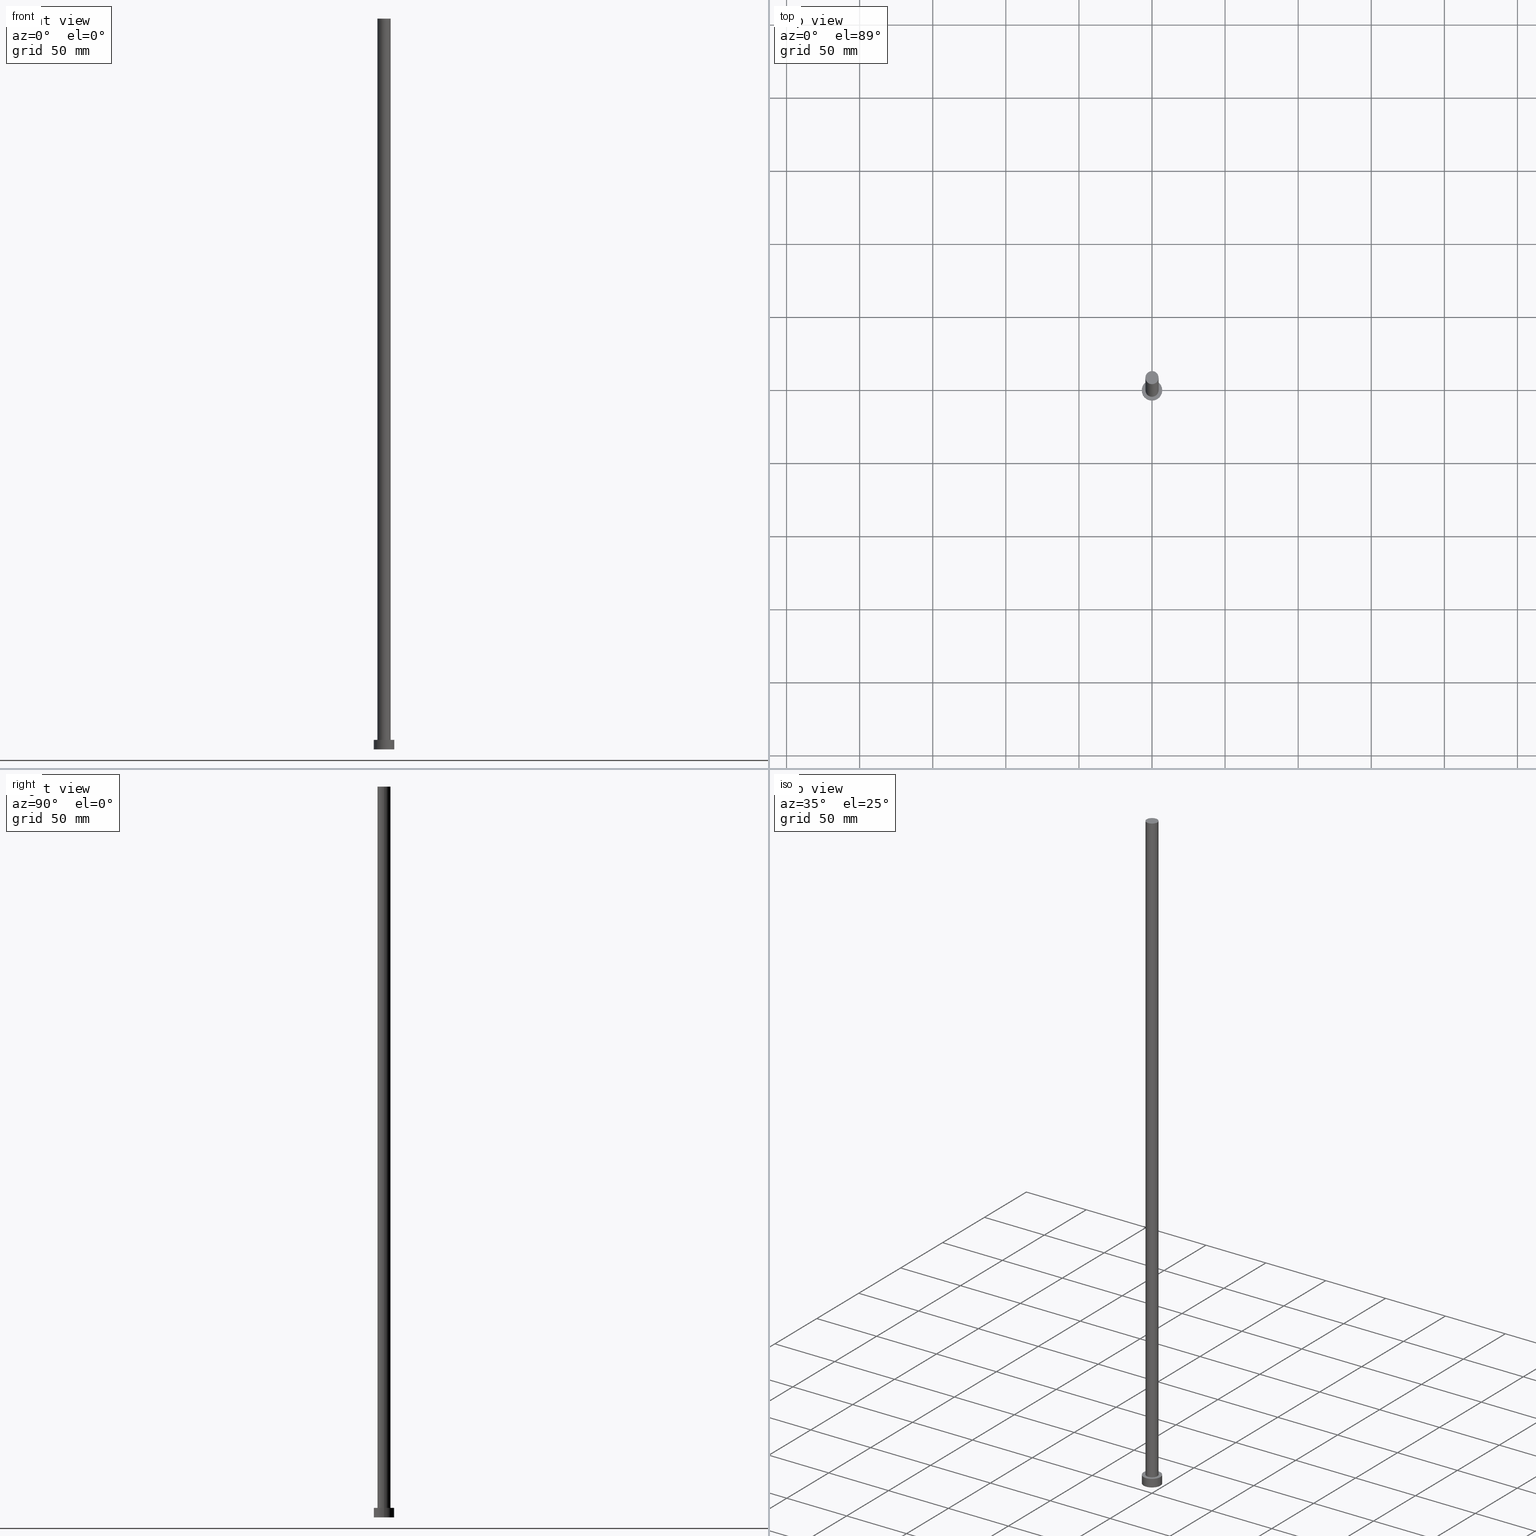
[diagram: canonical four-view strip — front | top / right | iso, engineering-drawing reading convention]
A machine part, canonical four-view strip (front | top / right | iso — engineering-drawing reading convention). The complete STEP part file that produces these views, byte-faithful:
ISO-10303-21;
HEADER;
FILE_DESCRIPTION (( 'STEP AP203' ),
    '1' );
FILE_NAME ('0ea1.STEP',
    '2023-02-13T13:45:12',
    ( '' ),
    ( '' ),
    'SwSTEP 2.0',
    'SolidWorks 2019',
    '' );
FILE_SCHEMA (( 'CONFIG_CONTROL_DESIGN' ));
ENDSEC;

DATA;
#1 =( NAMED_UNIT ( * ) SI_UNIT ( $, .STERADIAN. ) SOLID_ANGLE_UNIT ( ) );
#2 = LOCAL_TIME ( 14, 45, 12.00000000000000000, #143 ) ;
#3 = CARTESIAN_POINT ( 'NONE',  ( 4.500000000000000888, 5.510910596163089556E-16, 500.0000000000000000 ) ) ;
#4 = CALENDAR_DATE ( 2023, 13, 2 ) ;
#5 = DIRECTION ( 'NONE',  ( 0.000000000000000000, 0.000000000000000000, 1.000000000000000000 ) ) ;
#6 = ORIENTED_EDGE ( 'NONE', *, *, #245, .T. ) ;
#7 = CC_DESIGN_APPROVAL ( #193, ( #105 ) ) ;
#8 = EDGE_LOOP ( 'NONE', ( #40, #24 ) ) ;
#9 = CC_DESIGN_PERSON_AND_ORGANIZATION_ASSIGNMENT ( #95, #174, ( #150 ) ) ;
#10 = CC_DESIGN_DATE_AND_TIME_ASSIGNMENT ( #137, #111, ( #102 ) ) ;
#11 = CARTESIAN_POINT ( 'NONE',  ( -7.000000000000000000, 0.000000000000000000, 6.500000000000000000 ) ) ;
#12 = FACE_OUTER_BOUND ( 'NONE', #8, .T. ) ;
#13 = CC_DESIGN_SECURITY_CLASSIFICATION ( #102, ( #150 ) ) ;
#14 = DIRECTION ( 'NONE',  ( 1.000000000000000000, 0.000000000000000000, 0.000000000000000000 ) ) ;
#15 = DIRECTION ( 'NONE',  ( -0.000000000000000000, -0.000000000000000000, -1.000000000000000000 ) ) ;
#16 = DIRECTION ( 'NONE',  ( -0.000000000000000000, -0.000000000000000000, -1.000000000000000000 ) ) ;
#17 = DIRECTION ( 'NONE',  ( 0.000000000000000000, 0.000000000000000000, 1.000000000000000000 ) ) ;
#18 = MANIFOLD_SOLID_BREP ( 'P�idat vysunut�m3', #99 ) ;
#19 = VECTOR ( 'NONE', #110, 1000.000000000000000 ) ;
#20 = DIRECTION ( 'NONE',  ( 1.000000000000000000, 0.000000000000000000, 0.000000000000000000 ) ) ;
#21 = APPROVAL ( #172, 'NEUR�EN�' ) ;
#22 = APPROVAL_ROLE ( '' ) ;
#23 = PLANE ( 'NONE',  #116 ) ;
#24 = ORIENTED_EDGE ( 'NONE', *, *, #129, .F. ) ;
#25 = CIRCLE ( 'NONE', #31, 7.000000000000000000 ) ;
#26 = ORIENTED_EDGE ( 'NONE', *, *, #170, .T. ) ;
#27 = EDGE_CURVE ( 'NONE', #126, #146, #75, .T. ) ;
#28 = CARTESIAN_POINT ( 'NONE',  ( 0.000000000000000000, 0.000000000000000000, 500.0000000000000000 ) ) ;
#29 = CARTESIAN_POINT ( 'NONE',  ( 0.000000000000000000, 0.000000000000000000, 500.0000000000000000 ) ) ;
#30 = AXIS2_PLACEMENT_3D ( 'NONE', #68, #151, #113 ) ;
#31 = AXIS2_PLACEMENT_3D ( 'NONE', #90, #205, #109 ) ;
#32 = AXIS2_PLACEMENT_3D ( 'NONE', #71, #51, #139 ) ;
#33 = CARTESIAN_POINT ( 'NONE',  ( 0.000000000000000000, 0.000000000000000000, 6.500000000000000000 ) ) ;
#34 = CYLINDRICAL_SURFACE ( 'NONE', #30, 7.000000000000000000 ) ;
#35 = CARTESIAN_POINT ( 'NONE',  ( 0.000000000000000000, 0.000000000000000000, 500.0000000000000000 ) ) ;
#36 = PERSON_AND_ORGANIZATION ( #231, #173 ) ;
#37 = AXIS2_PLACEMENT_3D ( 'NONE', #33, #209, #252 ) ;
#38 = APPROVAL_PERSON_ORGANIZATION ( #122, #21, #96 ) ;
#39 = EDGE_LOOP ( 'NONE', ( #197, #42, #101, #194 ) ) ;
#40 = ORIENTED_EDGE ( 'NONE', *, *, #198, .F. ) ;
#41 = PERSON_AND_ORGANIZATION ( #231, #173 ) ;
#42 = ORIENTED_EDGE ( 'NONE', *, *, #249, .F. ) ;
#43 = ADVANCED_FACE ( 'NONE', ( #155, #123 ), #23, .T. ) ;
#44 = CARTESIAN_POINT ( 'NONE',  ( -7.000000000000000000, 0.000000000000000000, 6.500000000000000000 ) ) ;
#45 = CARTESIAN_POINT ( 'NONE',  ( -4.500000000000000888, 0.000000000000000000, 500.0000000000000000 ) ) ;
#46 = CIRCLE ( 'NONE', #118, 4.500000000000000888 ) ;
#47 = PLANE ( 'NONE',  #85 ) ;
#48 = LINE ( 'NONE', #189, #211 ) ;
#49 = DIRECTION ( 'NONE',  ( 0.000000000000000000, 0.000000000000000000, 1.000000000000000000 ) ) ;
#50 = CALENDAR_DATE ( 2023, 13, 2 ) ;
#51 = DIRECTION ( 'NONE',  ( -0.000000000000000000, -0.000000000000000000, -1.000000000000000000 ) ) ;
#52 = DIRECTION ( 'NONE',  ( -1.000000000000000000, 0.000000000000000000, 0.000000000000000000 ) ) ;
#53 = ORIENTED_EDGE ( 'NONE', *, *, #245, .F. ) ;
#54 = CYLINDRICAL_SURFACE ( 'NONE', #32, 7.000000000000000000 ) ;
#55 = DATE_AND_TIME ( #236, #2 ) ;
#56 = PERSON_AND_ORGANIZATION ( #231, #173 ) ;
#57 = AXIS2_PLACEMENT_3D ( 'NONE', #168, #167, #52 ) ;
#58 = EDGE_LOOP ( 'NONE', ( #203, #242 ) ) ;
#59 = COORDINATED_UNIVERSAL_TIME_OFFSET ( 1, 0, .AHEAD. ) ;
#60 = DESIGN_CONTEXT ( 'detailed design', #183, 'design' ) ;
#61 = ORIENTED_EDGE ( 'NONE', *, *, #91, .T. ) ;
#62 =( LENGTH_UNIT ( ) NAMED_UNIT ( * ) SI_UNIT ( .MILLI., .METRE. ) );
#63 = CIRCLE ( 'NONE', #221, 7.000000000000000000 ) ;
#64 = CARTESIAN_POINT ( 'NONE',  ( 7.000000000000000000, 8.572527594031471218E-16, 6.500000000000000000 ) ) ;
#65 = ADVANCED_FACE ( 'NONE', ( #135 ), #47, .T. ) ;
#66 = CARTESIAN_POINT ( 'NONE',  ( -4.500000000000000888, 0.000000000000000000, 6.500000000000000000 ) ) ;
#67 = CYLINDRICAL_SURFACE ( 'NONE', #57, 4.500000000000000888 ) ;
#68 = CARTESIAN_POINT ( 'NONE',  ( 0.000000000000000000, 0.000000000000000000, 6.500000000000000000 ) ) ;
#69 = CARTESIAN_POINT ( 'NONE',  ( 0.000000000000000000, 0.000000000000000000, 6.500000000000000000 ) ) ;
#70 = DIRECTION ( 'NONE',  ( 1.000000000000000000, 0.000000000000000000, 0.000000000000000000 ) ) ;
#71 = CARTESIAN_POINT ( 'NONE',  ( 0.000000000000000000, 0.000000000000000000, 6.500000000000000000 ) ) ;
#72 = PERSON_AND_ORGANIZATION ( #231, #173 ) ;
#73 = ORIENTED_EDGE ( 'NONE', *, *, #129, .T. ) ;
#74 = ADVANCED_FACE ( 'NONE', ( #207 ), #34, .T. ) ;
#75 = LINE ( 'NONE', #44, #222 ) ;
#76 = AXIS2_PLACEMENT_3D ( 'NONE', #145, #5, #220 ) ;
#77 = VERTEX_POINT ( 'NONE', #89 ) ;
#78 = CC_DESIGN_PERSON_AND_ORGANIZATION_ASSIGNMENT ( #56, #246, ( #158 ) ) ;
#79 = CARTESIAN_POINT ( 'NONE',  ( 0.000000000000000000, 0.000000000000000000, 6.500000000000000000 ) ) ;
#80 = CIRCLE ( 'NONE', #37, 4.500000000000000888 ) ;
#81 = CC_DESIGN_PERSON_AND_ORGANIZATION_ASSIGNMENT ( #41, #213, ( #105 ) ) ;
#82 = DIRECTION ( 'NONE',  ( 0.000000000000000000, 0.000000000000000000, 1.000000000000000000 ) ) ;
#83 = ADVANCED_FACE ( 'NONE', ( #138 ), #67, .T. ) ;
#84 =( NAMED_UNIT ( * ) PLANE_ANGLE_UNIT ( ) SI_UNIT ( $, .RADIAN. ) );
#85 = AXIS2_PLACEMENT_3D ( 'NONE', #28, #133, #115 ) ;
#86 = APPLICATION_CONTEXT ( 'configuration controlled 3d designs of mechanical parts and assemblies' ) ;
#87 = AXIS2_PLACEMENT_3D ( 'NONE', #254, #88, #112 ) ;
#88 = DIRECTION ( 'NONE',  ( 0.000000000000000000, 0.000000000000000000, 1.000000000000000000 ) ) ;
#89 = CARTESIAN_POINT ( 'NONE',  ( 7.000000000000000000, 8.572527594031471218E-16, 6.500000000000000000 ) ) ;
#90 = CARTESIAN_POINT ( 'NONE',  ( 0.000000000000000000, 0.000000000000000000, 0.000000000000000000 ) ) ;
#91 = EDGE_CURVE ( 'NONE', #98, #157, #182, .T. ) ;
#92 = LOCAL_TIME ( 14, 45, 12.00000000000000000, #119 ) ;
#93 = PERSON_AND_ORGANIZATION ( #231, #173 ) ;
#94 = SECURITY_CLASSIFICATION_LEVEL ( 'unclassified' ) ;
#95 = PERSON_AND_ORGANIZATION ( #231, #173 ) ;
#96 = APPROVAL_ROLE ( '' ) ;
#97 = DATE_AND_TIME ( #196, #250 ) ;
#98 = VERTEX_POINT ( 'NONE', #3 ) ;
#99 = CLOSED_SHELL ( 'NONE', ( #83, #74, #100, #43, #202, #255, #65 ) ) ;
#100 = ADVANCED_FACE ( 'NONE', ( #154 ), #54, .T. ) ;
#101 = ORIENTED_EDGE ( 'NONE', *, *, #27, .T. ) ;
#102 = SECURITY_CLASSIFICATION ( '', '', #94 ) ;
#103 = ORIENTED_EDGE ( 'NONE', *, *, #170, .F. ) ;
#104 = EDGE_LOOP ( 'NONE', ( #181, #219, #73, #144 ) ) ;
#105 = PRODUCT_DEFINITION ( 'NEZN�M�', '', #150, #60 ) ;
#106 = EDGE_CURVE ( 'NONE', #77, #148, #130, .T. ) ;
#107 = CC_DESIGN_APPROVAL ( #244, ( #150 ) ) ;
#108 = DIRECTION ( 'NONE',  ( -1.000000000000000000, 0.000000000000000000, 0.000000000000000000 ) ) ;
#109 = DIRECTION ( 'NONE',  ( 1.000000000000000000, 0.000000000000000000, 0.000000000000000000 ) ) ;
#110 = DIRECTION ( 'NONE',  ( -0.000000000000000000, -0.000000000000000000, -1.000000000000000000 ) ) ;
#111 = DATE_TIME_ROLE ( 'classification_date' ) ;
#112 = DIRECTION ( 'NONE',  ( 1.000000000000000000, 0.000000000000000000, -0.000000000000000000 ) ) ;
#113 = DIRECTION ( 'NONE',  ( -1.000000000000000000, 0.000000000000000000, 0.000000000000000000 ) ) ;
#114 = DIRECTION ( 'NONE',  ( 0.000000000000000000, 0.000000000000000000, 1.000000000000000000 ) ) ;
#115 = DIRECTION ( 'NONE',  ( 1.000000000000000000, 0.000000000000000000, -0.000000000000000000 ) ) ;
#116 = AXIS2_PLACEMENT_3D ( 'NONE', #79, #82, #159 ) ;
#117 = AXIS2_PLACEMENT_3D ( 'NONE', #29, #247, #108 ) ;
#118 = AXIS2_PLACEMENT_3D ( 'NONE', #35, #114, #225 ) ;
#119 = COORDINATED_UNIVERSAL_TIME_OFFSET ( 1, 0, .AHEAD. ) ;
#120 = EDGE_LOOP ( 'NONE', ( #53, #103, #149, #179 ) ) ;
#121 = PERSON_AND_ORGANIZATION ( #231, #173 ) ;
#122 = PERSON_AND_ORGANIZATION ( #231, #173 ) ;
#123 = FACE_OUTER_BOUND ( 'NONE', #243, .T. ) ;
#124 = ORIENTED_EDGE ( 'NONE', *, *, #91, .F. ) ;
#125 = CALENDAR_DATE ( 2023, 13, 2 ) ;
#126 = VERTEX_POINT ( 'NONE', #11 ) ;
#127 = DIRECTION ( 'NONE',  ( -0.000000000000000000, -0.000000000000000000, -1.000000000000000000 ) ) ;
#128 = PRODUCT_RELATED_PRODUCT_CATEGORY ( 'detail', '', ( #158 ) ) ;
#129 = EDGE_CURVE ( 'NONE', #148, #146, #165, .T. ) ;
#130 = LINE ( 'NONE', #64, #19 ) ;
#131 = DIRECTION ( 'NONE',  ( 0.000000000000000000, 0.000000000000000000, 1.000000000000000000 ) ) ;
#132 = AXIS2_PLACEMENT_3D ( 'NONE', #232, #142, #20 ) ;
#133 = DIRECTION ( 'NONE',  ( 0.000000000000000000, 0.000000000000000000, 1.000000000000000000 ) ) ;
#134 = CARTESIAN_POINT ( 'NONE',  ( -4.500000000000000888, 0.000000000000000000, 500.0000000000000000 ) ) ;
#135 = FACE_OUTER_BOUND ( 'NONE', #175, .T. ) ;
#136 = DATE_TIME_ROLE ( 'creation_date' ) ;
#137 = DATE_AND_TIME ( #4, #92 ) ;
#138 = FACE_OUTER_BOUND ( 'NONE', #214, .T. ) ;
#139 = DIRECTION ( 'NONE',  ( -1.000000000000000000, 0.000000000000000000, 0.000000000000000000 ) ) ;
#140 = LOCAL_TIME ( 14, 45, 12.00000000000000000, #228 ) ;
#141 = APPROVAL_ROLE ( '' ) ;
#142 = DIRECTION ( 'NONE',  ( 0.000000000000000000, 0.000000000000000000, 1.000000000000000000 ) ) ;
#143 = COORDINATED_UNIVERSAL_TIME_OFFSET ( 1, 0, .AHEAD. ) ;
#144 = ORIENTED_EDGE ( 'NONE', *, *, #27, .F. ) ;
#145 = CARTESIAN_POINT ( 'NONE',  ( 0.000000000000000000, 0.000000000000000000, 0.000000000000000000 ) ) ;
#146 = VERTEX_POINT ( 'NONE', #163 ) ;
#147 = APPROVAL_STATUS ( 'not_yet_approved' ) ;
#148 = VERTEX_POINT ( 'NONE', #251 ) ;
#149 = ORIENTED_EDGE ( 'NONE', *, *, #180, .T. ) ;
#150 = PRODUCT_DEFINITION_FORMATION_WITH_SPECIFIED_SOURCE ( 'LIBOVOLN�', '', #158, .NOT_KNOWN. ) ;
#151 = DIRECTION ( 'NONE',  ( -0.000000000000000000, -0.000000000000000000, -1.000000000000000000 ) ) ;
#152 = CARTESIAN_POINT ( 'NONE',  ( 4.500000000000000888, 5.510910596163089556E-16, 6.500000000000000000 ) ) ;
#153 = VERTEX_POINT ( 'NONE', #66 ) ;
#154 = FACE_OUTER_BOUND ( 'NONE', #39, .T. ) ;
#155 = FACE_BOUND ( 'NONE', #58, .T. ) ;
#156 = ORIENTED_EDGE ( 'NONE', *, *, #223, .T. ) ;
#157 = VERTEX_POINT ( 'NONE', #45 ) ;
#158 = PRODUCT ( '0ea1', '0ea1', '', ( #216 ) ) ;
#159 = DIRECTION ( 'NONE',  ( 1.000000000000000000, 0.000000000000000000, -0.000000000000000000 ) ) ;
#160 = CYLINDRICAL_SURFACE ( 'NONE', #117, 4.500000000000000888 ) ;
#161 = CIRCLE ( 'NONE', #215, 4.500000000000000888 ) ;
#162 = CC_DESIGN_PERSON_AND_ORGANIZATION_ASSIGNMENT ( #36, #169, ( #102 ) ) ;
#163 = CARTESIAN_POINT ( 'NONE',  ( -7.000000000000000000, 0.000000000000000000, 0.000000000000000000 ) ) ;
#164 = CARTESIAN_POINT ( 'NONE',  ( 0.000000000000000000, 0.000000000000000000, 6.500000000000000000 ) ) ;
#165 = CIRCLE ( 'NONE', #206, 7.000000000000000000 ) ;
#166 = DIRECTION ( 'NONE',  ( 0.000000000000000000, 0.000000000000000000, 1.000000000000000000 ) ) ;
#167 = DIRECTION ( 'NONE',  ( -0.000000000000000000, -0.000000000000000000, -1.000000000000000000 ) ) ;
#168 = CARTESIAN_POINT ( 'NONE',  ( 0.000000000000000000, 0.000000000000000000, 500.0000000000000000 ) ) ;
#169 = PERSON_AND_ORGANIZATION_ROLE ( 'classification_officer' ) ;
#170 = EDGE_CURVE ( 'NONE', #157, #98, #46, .T. ) ;
#171 = DATE_AND_TIME ( #50, #140 ) ;
#172 = APPROVAL_STATUS ( 'not_yet_approved' ) ;
#173 = ORGANIZATION ( 'NEUR�EN�', 'NEUR�EN�', '' ) ;
#174 = PERSON_AND_ORGANIZATION_ROLE ( 'creator' ) ;
#175 = EDGE_LOOP ( 'NONE', ( #26, #61 ) ) ;
#176 = APPROVAL_DATE_TIME ( #97, #21 ) ;
#177 = ORIENTED_EDGE ( 'NONE', *, *, #180, .F. ) ;
#178 = CIRCLE ( 'NONE', #234, 7.000000000000000000 ) ;
#179 = ORIENTED_EDGE ( 'NONE', *, *, #227, .T. ) ;
#180 = EDGE_CURVE ( 'NONE', #157, #153, #208, .T. ) ;
#181 = ORIENTED_EDGE ( 'NONE', *, *, #223, .F. ) ;
#182 = CIRCLE ( 'NONE', #132, 4.500000000000000888 ) ;
#183 = APPLICATION_CONTEXT ( 'configuration controlled 3d designs of mechanical parts and assemblies' ) ;
#184 = CARTESIAN_POINT ( 'NONE',  ( 0.000000000000000000, 0.000000000000000000, 0.000000000000000000 ) ) ;
#185 = CC_DESIGN_DATE_AND_TIME_ASSIGNMENT ( #55, #136, ( #105 ) ) ;
#186 = APPROVAL_PERSON_ORGANIZATION ( #72, #244, #141 ) ;
#187 = ADVANCED_BREP_SHAPE_REPRESENTATION ( '0ea1', ( #18, #76 ), #191 ) ;
#188 = EDGE_CURVE ( 'NONE', #217, #153, #80, .T. ) ;
#189 = CARTESIAN_POINT ( 'NONE',  ( 4.500000000000000888, 5.510910596163089556E-16, 500.0000000000000000 ) ) ;
#190 = APPROVAL_STATUS ( 'not_yet_approved' ) ;
#191 =( GEOMETRIC_REPRESENTATION_CONTEXT ( 3 ) GLOBAL_UNCERTAINTY_ASSIGNED_CONTEXT ( ( #201 ) ) GLOBAL_UNIT_ASSIGNED_CONTEXT ( ( #62, #84, #1 ) ) REPRESENTATION_CONTEXT ( 'NONE', 'WORKASPACE' ) );
#192 = VECTOR ( 'NONE', #16, 1000.000000000000000 ) ;
#193 = APPROVAL ( #147, 'NEUR�EN�' ) ;
#194 = ORIENTED_EDGE ( 'NONE', *, *, #198, .T. ) ;
#195 = APPROVAL_PERSON_ORGANIZATION ( #121, #193, #22 ) ;
#196 = CALENDAR_DATE ( 2023, 13, 2 ) ;
#197 = ORIENTED_EDGE ( 'NONE', *, *, #106, .F. ) ;
#198 = EDGE_CURVE ( 'NONE', #146, #148, #25, .T. ) ;
#199 = APPLICATION_PROTOCOL_DEFINITION ( 'international standard', 'config_control_design', 1994, #183 ) ;
#200 = PRODUCT_DEFINITION_SHAPE ( 'NONE', 'NONE',  #105 ) ;
#201 = UNCERTAINTY_MEASURE_WITH_UNIT (LENGTH_MEASURE( 1.000000000000000082E-05 ), #62, 'distance_accuracy_value', 'NONE');
#202 = ADVANCED_FACE ( 'NONE', ( #12 ), #248, .F. ) ;
#203 = ORIENTED_EDGE ( 'NONE', *, *, #227, .F. ) ;
#204 = LOCAL_TIME ( 14, 45, 12.00000000000000000, #241 ) ;
#205 = DIRECTION ( 'NONE',  ( 0.000000000000000000, 0.000000000000000000, 1.000000000000000000 ) ) ;
#206 = AXIS2_PLACEMENT_3D ( 'NONE', #184, #131, #14 ) ;
#207 = FACE_OUTER_BOUND ( 'NONE', #104, .T. ) ;
#208 = LINE ( 'NONE', #134, #192 ) ;
#209 = DIRECTION ( 'NONE',  ( 0.000000000000000000, 0.000000000000000000, 1.000000000000000000 ) ) ;
#210 = APPLICATION_PROTOCOL_DEFINITION ( 'international standard', 'config_control_design', 1994, #86 ) ;
#211 = VECTOR ( 'NONE', #15, 1000.000000000000000 ) ;
#212 = CC_DESIGN_PERSON_AND_ORGANIZATION_ASSIGNMENT ( #93, #229, ( #150 ) ) ;
#213 = PERSON_AND_ORGANIZATION_ROLE ( 'creator' ) ;
#214 = EDGE_LOOP ( 'NONE', ( #124, #6, #237, #177 ) ) ;
#215 = AXIS2_PLACEMENT_3D ( 'NONE', #69, #166, #226 ) ;
#216 = MECHANICAL_CONTEXT ( 'NONE', #86, 'mechanical' ) ;
#217 = VERTEX_POINT ( 'NONE', #152 ) ;
#218 = DATE_AND_TIME ( #125, #204 ) ;
#219 = ORIENTED_EDGE ( 'NONE', *, *, #106, .T. ) ;
#220 = DIRECTION ( 'NONE',  ( 1.000000000000000000, 0.000000000000000000, 0.000000000000000000 ) ) ;
#221 = AXIS2_PLACEMENT_3D ( 'NONE', #253, #49, #230 ) ;
#222 = VECTOR ( 'NONE', #127, 1000.000000000000000 ) ;
#223 = EDGE_CURVE ( 'NONE', #77, #126, #178, .T. ) ;
#224 = CC_DESIGN_APPROVAL ( #21, ( #102 ) ) ;
#225 = DIRECTION ( 'NONE',  ( 1.000000000000000000, 0.000000000000000000, 0.000000000000000000 ) ) ;
#226 = DIRECTION ( 'NONE',  ( 1.000000000000000000, 0.000000000000000000, 0.000000000000000000 ) ) ;
#227 = EDGE_CURVE ( 'NONE', #153, #217, #161, .T. ) ;
#228 = COORDINATED_UNIVERSAL_TIME_OFFSET ( 1, 0, .AHEAD. ) ;
#229 = PERSON_AND_ORGANIZATION_ROLE ( 'design_supplier' ) ;
#230 = DIRECTION ( 'NONE',  ( 1.000000000000000000, 0.000000000000000000, 0.000000000000000000 ) ) ;
#231 = PERSON ( 'NEUR�EN�', 'NEUR�EN�', 'NEUR�EN�', ('NEUR�EN�'), ('NEUR�EN�'), ('NEUR�EN�') ) ;
#232 = CARTESIAN_POINT ( 'NONE',  ( 0.000000000000000000, 0.000000000000000000, 500.0000000000000000 ) ) ;
#233 = APPROVAL_DATE_TIME ( #171, #244 ) ;
#234 = AXIS2_PLACEMENT_3D ( 'NONE', #164, #17, #70 ) ;
#235 = APPROVAL_DATE_TIME ( #218, #193 ) ;
#236 = CALENDAR_DATE ( 2023, 13, 2 ) ;
#237 = ORIENTED_EDGE ( 'NONE', *, *, #188, .T. ) ;
#238 = FACE_OUTER_BOUND ( 'NONE', #120, .T. ) ;
#239 = SHAPE_DEFINITION_REPRESENTATION ( #200, #187 ) ;
#240 = ORIENTED_EDGE ( 'NONE', *, *, #249, .T. ) ;
#241 = COORDINATED_UNIVERSAL_TIME_OFFSET ( 1, 0, .AHEAD. ) ;
#242 = ORIENTED_EDGE ( 'NONE', *, *, #188, .F. ) ;
#243 = EDGE_LOOP ( 'NONE', ( #240, #156 ) ) ;
#244 = APPROVAL ( #190, 'NEUR�EN�' ) ;
#245 = EDGE_CURVE ( 'NONE', #98, #217, #48, .T. ) ;
#246 = PERSON_AND_ORGANIZATION_ROLE ( 'design_owner' ) ;
#247 = DIRECTION ( 'NONE',  ( -0.000000000000000000, -0.000000000000000000, -1.000000000000000000 ) ) ;
#248 = PLANE ( 'NONE',  #87 ) ;
#249 = EDGE_CURVE ( 'NONE', #126, #77, #63, .T. ) ;
#250 = LOCAL_TIME ( 14, 45, 12.00000000000000000, #59 ) ;
#251 = CARTESIAN_POINT ( 'NONE',  ( 7.000000000000000000, 8.572527594031471218E-16, 0.000000000000000000 ) ) ;
#252 = DIRECTION ( 'NONE',  ( 1.000000000000000000, 0.000000000000000000, 0.000000000000000000 ) ) ;
#253 = CARTESIAN_POINT ( 'NONE',  ( 0.000000000000000000, 0.000000000000000000, 6.500000000000000000 ) ) ;
#254 = CARTESIAN_POINT ( 'NONE',  ( 0.000000000000000000, 0.000000000000000000, 0.000000000000000000 ) ) ;
#255 = ADVANCED_FACE ( 'NONE', ( #238 ), #160, .T. ) ;
ENDSEC;
END-ISO-10303-21;
